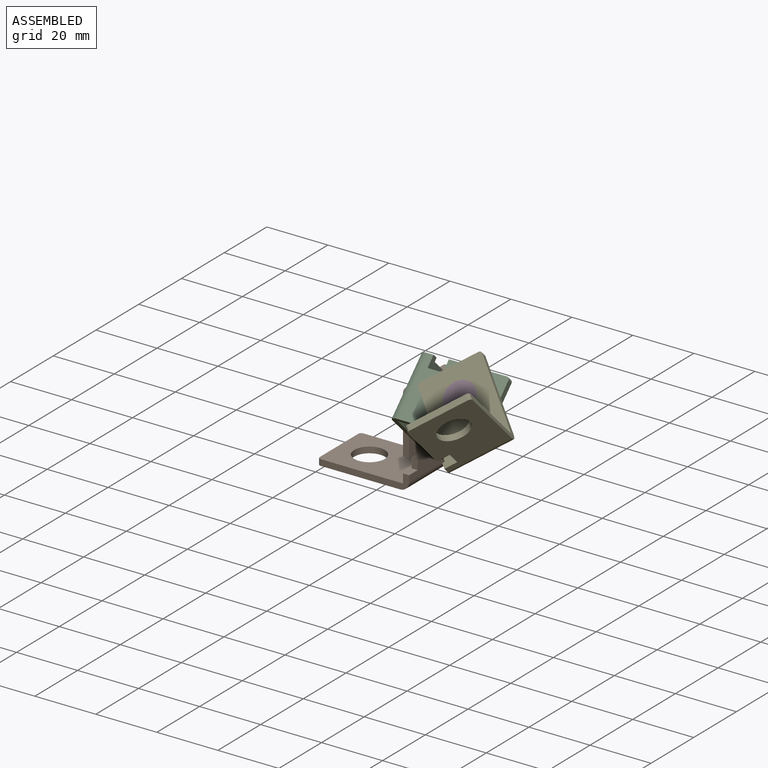
[diagram: assembled view]
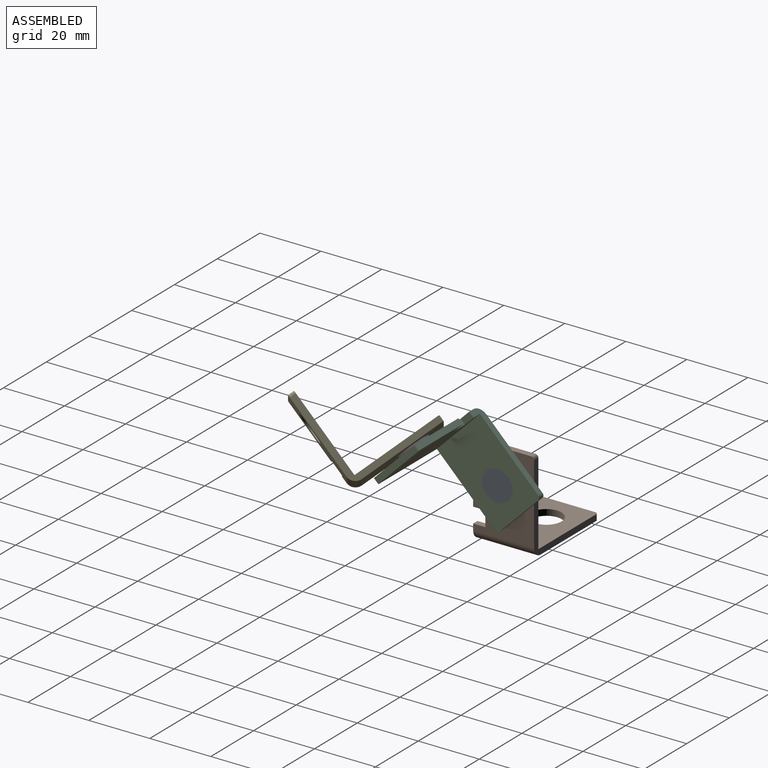
[diagram: assembled view, second angle]
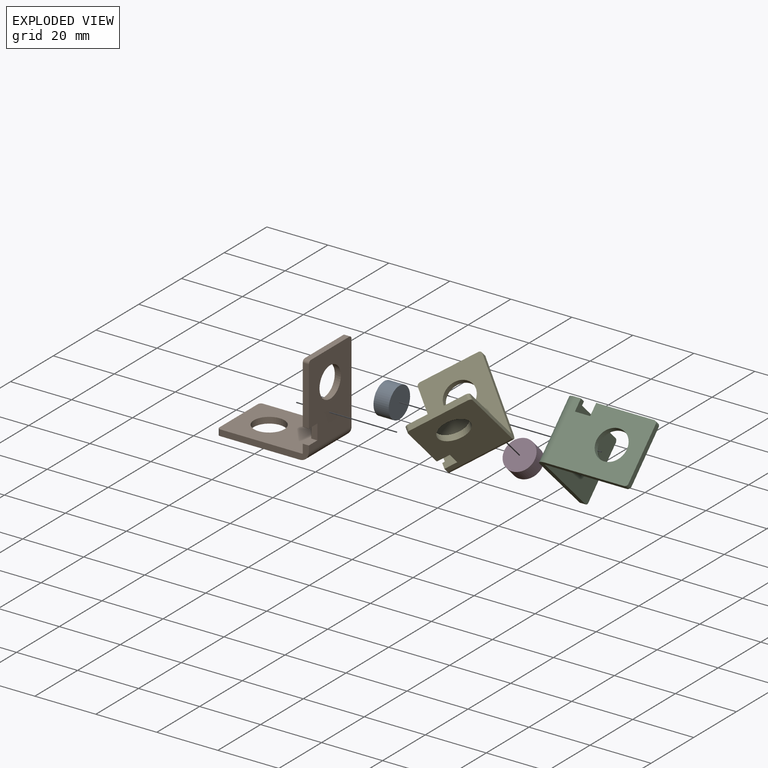
[diagram: exploded view]
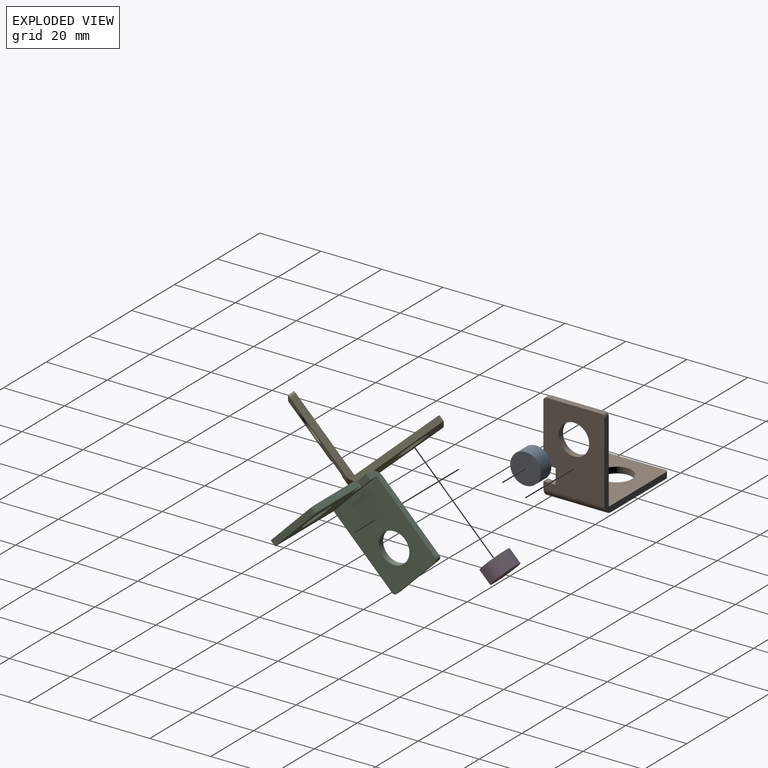
[diagram: exploded view, second angle]
ASSEMBLY  parts=5 mates=4
PART A: 3 faces, bbox 10x5x10 mm
  f0: cylinder r=5mm len=10mm, axis (0,1,0), area 157.1mm2, adj f1,f2
  f1: plane 10x10mm, normal (0,-1,0), area 78.5mm2, adj f0
  f2: plane 10x10mm, normal (0,1,0), area 78.5mm2, adj f0
PART B: 19 faces, bbox 30x20x30 mm
  f0: plane 27x20mm, normal (1,0,0), area 441mm2, adj f1,f6,f7,f8,f9,f10,f12,f13
  f1: plane 19x2mm, normal (0,-1,0), area 38mm2, adj f0,f2,f14,f18
  f2: plane 28x20mm, normal (-1,0,0), area 461mm2, adj f1,f3,f7,f8,f9,f10,f12,f13
  f3: plane 28x20mm, normal (0,0,1), area 481mm2, adj f2,f4,f8,f9,f11,f15,f17
  f4: plane 18x2mm, normal (-1,0,0), area 36mm2, adj f3,f5,f15,f17
  f5: plane 27x20mm, normal (0,0,-1), area 461mm2, adj f4,f6,f8,f9,f11,f15,f17
  f6: cylinder r=3mm len=20mm, axis (0,1,0), area 94.2mm2, adj f0,f5,f8,f9
  f7: plane 18x2mm, normal (0,0,1), area 36mm2, adj f0,f2,f16,f18
  f8: plane 29x5mm, normal (0,-1,0), area 62.1mm2, adj f0,f2,f3,f5,f6,f13,f17
  f9: plane 29x29mm, normal (0,1,0), area 110.1mm2, adj f0,f2,f3,f5,f6,f15,f16
  f10: cylinder r=5mm len=10mm, axis (-1,0,0), area 62.8mm2, adj f0,f2
  f11: cylinder r=5mm len=10mm, axis (0,0,1), area 62.8mm2, adj f3,f5
  f12: plane 5x2mm, normal (0,-1,0), area 10mm2, adj f0,f2,f13,f14
  f13: plane 4x2mm, normal (0,0,1), area 8mm2, adj f0,f2,f8,f12
  f14: plane 4x2mm, normal (0,0,-1), area 8mm2, adj f0,f1,f2,f12
  f15: cylinder r=1mm len=2mm, axis (0,0,-1), area 3.1mm2, adj f3,f4,f5,f9
  f16: cylinder r=1mm len=2mm, axis (-1,0,0), area 3.1mm2, adj f0,f2,f7,f9
  f17: cylinder r=1mm len=2mm, axis (0,0,1), area 3.1mm2, adj f3,f4,f5,f8
  f18: cylinder r=1mm len=2mm, axis (1,0,0), area 3.1mm2, adj f0,f1,f2,f7
PART C: same geometry as B
PART D: same geometry as A
PART E: same geometry as B
PLACE A rot(axis=(-0.58,-0.58,-0.58),120deg) t=(33,-9,20)mm
PLACE B t=(0,1,0)mm
PLACE C rot(axis=(-0.68,0.28,-0.68),148.5deg) t=(31,-8.97,5.86)mm
PLACE D rot(axis=(-0.36,0.86,-0.36),98.4deg) t=(51,-21.75,32.7)mm
PLACE E rot(axis=(0.68,0.28,-0.68),63.1deg) t=(51.08,-13.9,44.84)mm
MATE fastened D.f0 <-> C.f10  axis (0,0.71,-0.71) through (51,-21.75,32.7)mm
MATE revolute D.f0 <-> E.f11  axis (0,-0.71,0.71) through (51,-25.29,36.23)mm
MATE revolute C.f11 <-> A.f0  axis (1,0,0) through (33,-9,20)mm
MATE fastened A.f0 <-> B.f10  axis (-1,0,0) through (28,-9,20)mm
